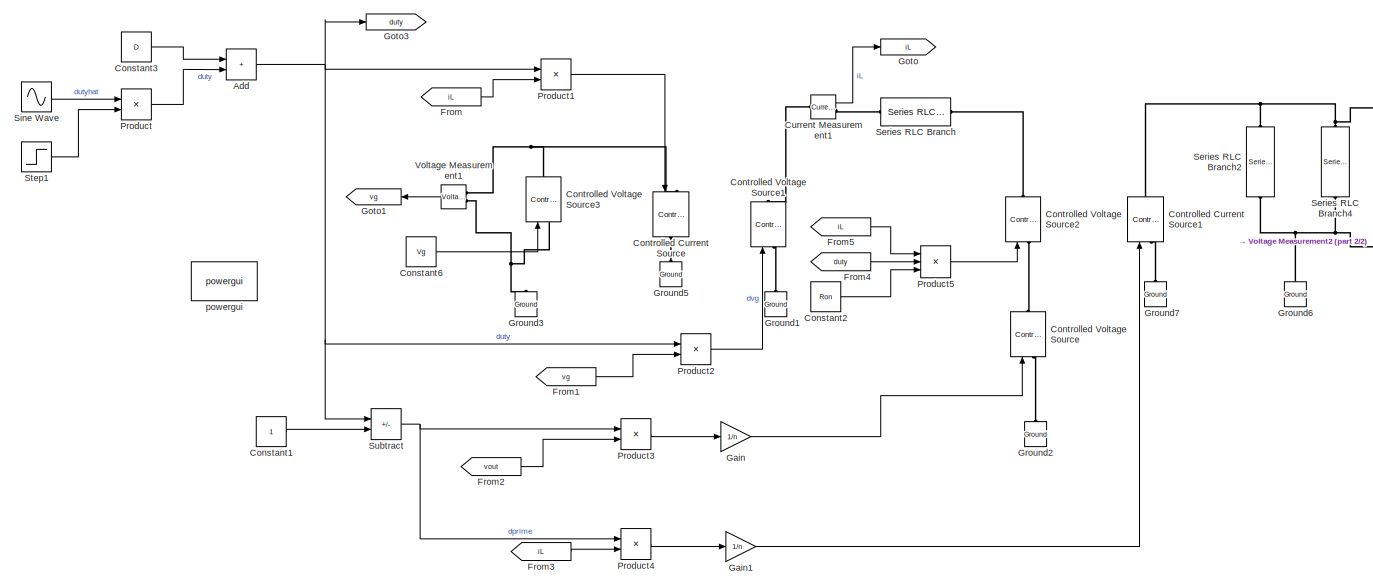
[diagram: root canvas - part 1/2, most of the canvas]
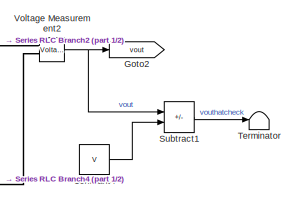
[diagram: root canvas - part 2/2, top right region]
MODEL slx_a8964a06f989
KIND model
CONFIG AbsTol = auto
CONFIG EnableMultiTasking = off
CONFIG FixedStep = auto
CONFIG MaxStep = auto
CONFIG MinStep = auto
CONFIG RelTol = 1e-4
CONFIG SampleTimeConstraint = Unconstrained
CONFIG SolverName = ode23tb
CONFIG StartTime = 0.0
CONFIG StopTime = .02
BLOCK [Sum] Add
  IconShape = rectangular
  Ports = [2, 1]
BLOCK [Constant] Constant1
BLOCK [Constant] Constant2
  Value = Ron
BLOCK [Constant] Constant3
  Value = D
BLOCK [Constant] Constant4
  Value = V
BLOCK [Constant] Constant6
  Value = Vg
BLOCK [Reference] Controlled Current Source  REF=spsControlledCurrentSourceLib/Controlled Current Source
  NameLocation = left
  Ports = [1, 0, 0, 0, 0, 1, 1]
  SourceBlock = spsControlledCurrentSourceLib/Controlled Current Source
  SourceProductBaseCode = PS
  SourceType = Controlled Current Source
BLOCK [Reference] Controlled Current Source1  REF=spsControlledCurrentSourceLib/Controlled Current Source
  NameLocation = right
  Ports = [1, 0, 0, 0, 0, 1, 1]
  SourceBlock = spsControlledCurrentSourceLib/Controlled Current Source
  SourceProductBaseCode = PS
  SourceType = Controlled Current Source
BLOCK [Reference] Controlled Voltage Source  REF=spsControlledVoltageSourceLib/Controlled Voltage Source
  NameLocation = right
  Ports = [1, 0, 0, 0, 0, 1, 1]
  SourceBlock = spsControlledVoltageSourceLib/Controlled Voltage Source
  SourceProductBaseCode = PS
  SourceType = Controlled Voltage Source
BLOCK [Reference] Controlled Voltage Source1  REF=spsControlledVoltageSourceLib/Controlled Voltage Source
  NameLocation = right
  Ports = [1, 0, 0, 0, 0, 1, 1]
  SourceBlock = spsControlledVoltageSourceLib/Controlled Voltage Source
  SourceProductBaseCode = PS
  SourceType = Controlled Voltage Source
BLOCK [Reference] Controlled Voltage Source2  REF=spsControlledVoltageSourceLib/Controlled Voltage Source
  NameLocation = right
  Ports = [1, 0, 0, 0, 0, 1, 1]
  SourceBlock = spsControlledVoltageSourceLib/Controlled Voltage Source
  SourceProductBaseCode = PS
  SourceType = Controlled Voltage Source
BLOCK [Reference] Controlled Voltage Source3  REF=spsControlledVoltageSourceLib/Controlled Voltage Source
  NameLocation = right
  Ports = [1, 0, 0, 0, 0, 1, 1]
  SourceBlock = spsControlledVoltageSourceLib/Controlled Voltage Source
  SourceProductBaseCode = PS
  SourceType = Controlled Voltage Source
BLOCK [Reference] Current Measurement1  REF=spsCurrentMeasurementLib/Current Measurement
  Ports = [0, 1, 0, 0, 0, 1, 1]
  SourceBlock = spsCurrentMeasurementLib/Current Measurement
  SourceProductBaseCode = PS
  SourceType = Current Measurement
BLOCK [From] From
  GotoTag = iL
BLOCK [From] From1
  GotoTag = vg
BLOCK [From] From2
  GotoTag = vout
BLOCK [From] From3
  GotoTag = iL
BLOCK [From] From4
  GotoTag = duty
BLOCK [From] From5
  GotoTag = iL
BLOCK [Gain] Gain
  Gain = 1/n
BLOCK [Gain] Gain1
  Gain = 1/n
BLOCK [Goto] Goto
  GotoTag = iL
BLOCK [Goto] Goto1
  GotoTag = vg
  NameLocation = top
BLOCK [Goto] Goto2
  GotoTag = vout
BLOCK [Goto] Goto3
  GotoTag = duty
BLOCK [Reference] Ground1  REF=spsGroundLib/Ground
  NameLocation = right
  Ports = [0, 0, 0, 0, 0, 1]
  SourceBlock = spsGroundLib/Ground
  SourceProductBaseCode = PS
  SourceType = Ground
BLOCK [Reference] Ground2  REF=spsGroundLib/Ground
  NameLocation = right
  Ports = [0, 0, 0, 0, 0, 1]
  SourceBlock = spsGroundLib/Ground
  SourceProductBaseCode = PS
  SourceType = Ground
BLOCK [Reference] Ground3  REF=spsGroundLib/Ground
  NameLocation = right
  Ports = [0, 0, 0, 0, 0, 1]
  SourceBlock = spsGroundLib/Ground
  SourceProductBaseCode = PS
  SourceType = Ground
BLOCK [Reference] Ground5  REF=spsGroundLib/Ground
  NameLocation = right
  Ports = [0, 0, 0, 0, 0, 1]
  SourceBlock = spsGroundLib/Ground
  SourceProductBaseCode = PS
  SourceType = Ground
BLOCK [Reference] Ground6  REF=spsGroundLib/Ground
  NameLocation = right
  Ports = [0, 0, 0, 0, 0, 1]
  SourceBlock = spsGroundLib/Ground
  SourceProductBaseCode = PS
  SourceType = Ground
BLOCK [Reference] Ground7  REF=spsGroundLib/Ground
  NameLocation = right
  Ports = [0, 0, 0, 0, 0, 1]
  SourceBlock = spsGroundLib/Ground
  SourceProductBaseCode = PS
  SourceType = Ground
BLOCK [Product] Product
  Ports = [2, 1]
BLOCK [Product] Product1
  Ports = [2, 1]
BLOCK [Product] Product2
  Ports = [2, 1]
BLOCK [Product] Product3
  Ports = [2, 1]
BLOCK [Product] Product4
  Ports = [2, 1]
BLOCK [Product] Product5
  Inputs = 3
  Ports = [3, 1]
BLOCK [Reference] Series RLC Branch  REF=spsSeriesRLCBranchLib/Series RLC Branch
  Ports = [0, 0, 0, 0, 0, 1, 1]
  SourceBlock = spsSeriesRLCBranchLib/Series RLC Branch
  SourceProductBaseCode = PS
  SourceType = Series RLC Branch
BLOCK [Reference] Series RLC Branch2  REF=spsSeriesRLCBranchLib/Series RLC Branch
  NameLocation = left
  Ports = [0, 0, 0, 0, 0, 1, 1]
  SourceBlock = spsSeriesRLCBranchLib/Series RLC Branch
  SourceProductBaseCode = PS
  SourceType = Series RLC Branch
BLOCK [Reference] Series RLC Branch4  REF=spsSeriesRLCBranchLib/Series RLC Branch
  NameLocation = right
  Ports = [0, 0, 0, 0, 0, 1, 1]
  SourceBlock = spsSeriesRLCBranchLib/Series RLC Branch
  SourceProductBaseCode = PS
  SourceType = Series RLC Branch
BLOCK [Sin] Sine Wave
  Amplitude = .01
  Frequency = 2*pi*1000
  Ports = [0, 1]
  SampleTime = 0
BLOCK [Step] Step1
  SampleTime = 0
  Time = 10e-3
BLOCK [Sum] Subtract
  IconShape = rectangular
  Inputs = -+
  Ports = [2, 1]
BLOCK [Sum] Subtract1
  IconShape = rectangular
  Inputs = +-
  Ports = [2, 1]
BLOCK [Terminator] Terminator
BLOCK [Reference] Voltage Measurement1  REF=spsVoltageMeasurementLib/Voltage Measurement
  NameLocation = top
  Ports = [0, 1, 0, 0, 0, 2]
  SourceBlock = spsVoltageMeasurementLib/Voltage Measurement
  SourceProductBaseCode = PS
  SourceType = Voltage Measurement
BLOCK [Reference] Voltage Measurement2  REF=spsVoltageMeasurementLib/Voltage Measurement
  Ports = [0, 1, 0, 0, 0, 2]
  SourceBlock = spsVoltageMeasurementLib/Voltage Measurement
  SourceProductBaseCode = PS
  SourceType = Voltage Measurement
BLOCK [Reference] powergui  REF=spspowerguiLib/powergui
  Ports = []
  Priority = 1
  SourceBlock = spspowerguiLib/powergui
  SourceProductBaseCode = PS
  SourceType = PSB option menu block
NET Add:1 -> Goto3:1, Product1:1, Product2:1, Subtract:1
LINE Constant1:1 -> Subtract:2
LINE Constant2:1 -> Product5:3
LINE Constant3:1 -> Add:1
LINE Constant4:1 -> Subtract1:2
LINE Constant6:1 -> Controlled Voltage Source3:1
LINE Current Measurement1:1 -> Goto:1
LINE From1:1 -> Product2:2
LINE From2:1 -> Product3:2
LINE From3:1 -> Product4:2
LINE From4:1 -> Product5:2
LINE From5:1 -> Product5:1
LINE From:1 -> Product1:2
LINE Gain1:1 -> Controlled Current Source1:1
LINE Gain:1 -> Controlled Voltage Source:1
LINE Product1:1 -> Controlled Current Source:1
LINE Product2:1 -> Controlled Voltage Source1:1
LINE Product3:1 -> Gain:1
LINE Product4:1 -> Gain1:1
LINE Product5:1 -> Controlled Voltage Source2:1
LINE Product:1 -> Add:2
LINE Sine Wave:1 -> Product:1
LINE Step1:1 -> Product:2
LINE Subtract1:1 -> Terminator:1
NET Subtract:1 -> Product3:1, Product4:1
LINE Voltage Measurement1:1 -> Goto1:1
NET Voltage Measurement2:1 -> Goto2:1, Subtract1:1
PLINE Controlled Current Source1:LConn1 -- Ground7:LConn1
PNET net1: Controlled Current Source1:RConn1 -- Series RLC Branch2:LConn1 -- Series RLC Branch4:RConn1 -- Voltage Measurement2:LConn1
PNET net2: Controlled Current Source:LConn1 -- Controlled Voltage Source3:RConn1 -- Voltage Measurement1:LConn1
PLINE Controlled Current Source:RConn1 -- Ground5:LConn1
PLINE Controlled Voltage Source1:LConn1 -- Ground1:LConn1
PLINE Controlled Voltage Source1:RConn1 -- Current Measurement1:LConn1
PLINE Controlled Voltage Source2:LConn1 -- Controlled Voltage Source:RConn1
PLINE Controlled Voltage Source2:RConn1 -- Series RLC Branch:RConn1
PNET net3: Controlled Voltage Source3:LConn1 -- Ground3:LConn1 -- Voltage Measurement1:LConn2
PLINE Controlled Voltage Source:LConn1 -- Ground2:LConn1
PLINE Current Measurement1:RConn1 -- Series RLC Branch:LConn1
PNET net4: Ground6:LConn1 -- Series RLC Branch2:RConn1 -- Series RLC Branch4:LConn1 -- Voltage Measurement2:LConn2
note: NET lines group one-source signal fan-out (src -> all destinations, sorted); 1:1 wires keep LINE; PNET lines group multi-terminal physical nets as a canonical sorted terminal list (undirected conserving connections); 2-terminal nets keep the pairwise PLINE form
